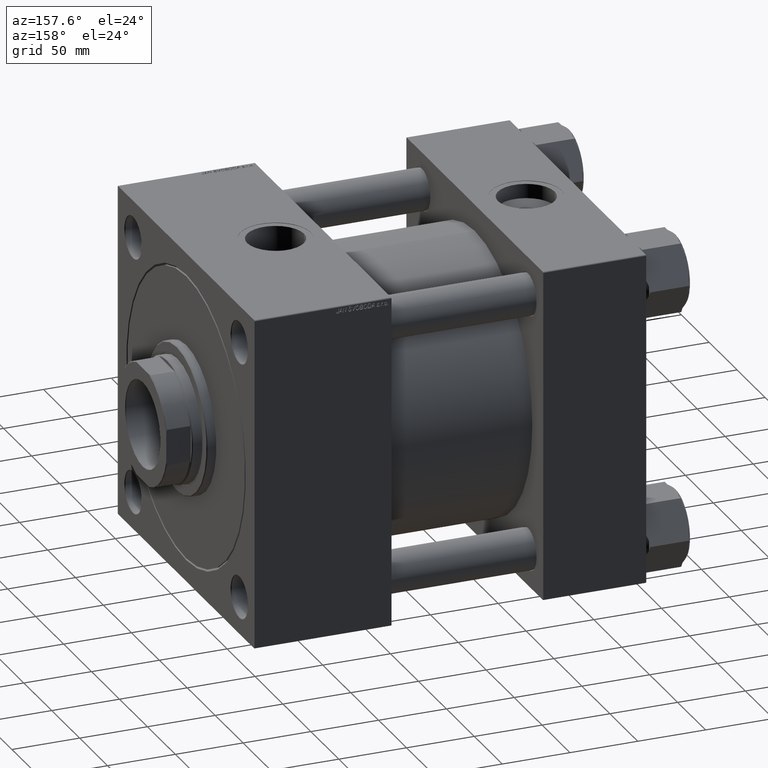
[diagram: clean part render]
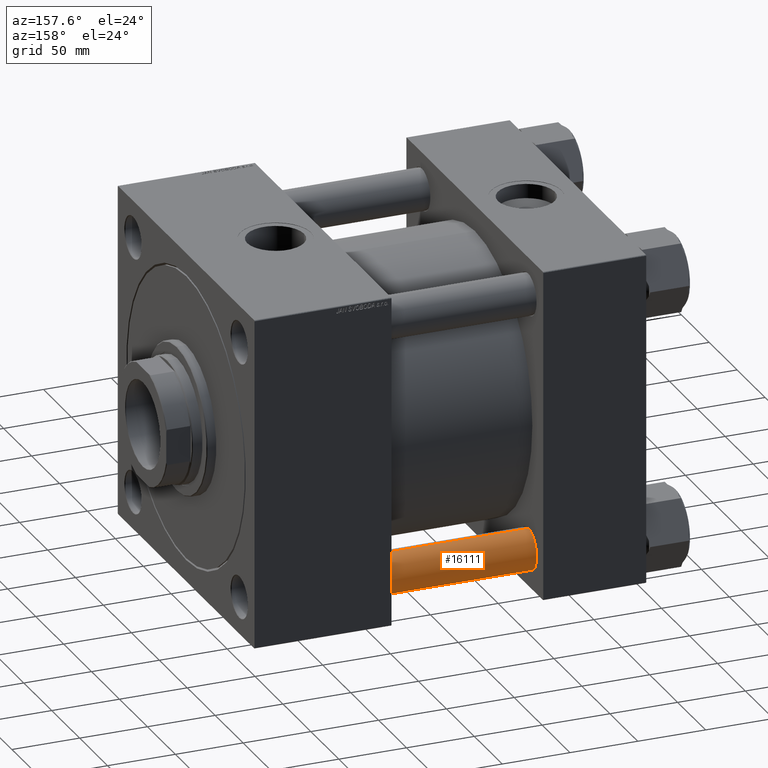
[diagram: same view with one face highlighted and labeled with its STEP entity id]
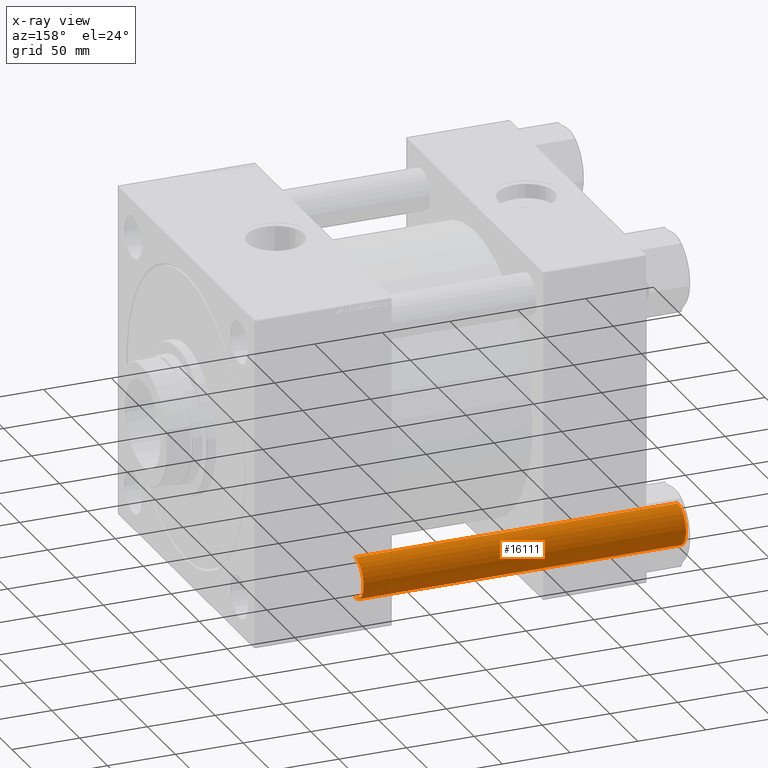
[diagram: x-ray of the same camera — body ghosted, the highlighted face saturated]
A machine part, auxiliary view. The second image highlights one B-rep face of the part: STEP entity #16111.
The next image is the same camera in x-ray: the body ghosted, the highlighted face saturated — about 0% of this face is hidden behind the body in this view.
In plain terms, the highlighted cylindrical surface (edge-blend (fillet) strip) has radius 15 mm, axis along (1, -0, -0).
Its self-contained STEP definition (entity closure, byte-faithful):
#501 = CIRCLE ( 'NONE', #5383, 15.00000000000000000 ) ;
#1920 = DIRECTION ( 'NONE',  ( -0.000000000000000000, -0.000000000000000000, 1.000000000000000000 ) ) ;
#3799 = CYLINDRICAL_SURFACE ( 'NONE', #27580, 15.00000000000000000 ) ;
#3948 = CARTESIAN_POINT ( 'NONE',  ( 15.00000000000000000, 1.836970198721029194E-15, 239.0000000000000000 ) ) ;
#5383 = AXIS2_PLACEMENT_3D ( 'NONE', #24738, #1920, #48585 ) ;
#5648 = VERTEX_POINT ( 'NONE', #39179 ) ;
#9643 = DIRECTION ( 'NONE',  ( -0.000000000000000000, -0.000000000000000000, -1.000000000000000000 ) ) ;
#14874 = EDGE_LOOP ( 'NONE', ( #38614, #35852, #48104, #27620 ) ) ;
#15555 = CARTESIAN_POINT ( 'NONE',  ( 0.000000000000000000, 0.000000000000000000, 238.5000000000000568 ) ) ;
#16111 = ADVANCED_FACE ( 'NONE', ( #50474 ), #3799, .T. ) ;
#18466 = EDGE_CURVE ( 'NONE', #23480, #21560, #38795, .T. ) ;
#18988 = CIRCLE ( 'NONE', #47671, 15.00000000000000000 ) ;
#20936 = LINE ( 'NONE', #47871, #43943 ) ;
#21560 = VERTEX_POINT ( 'NONE', #46794 ) ;
#23270 = CARTESIAN_POINT ( 'NONE',  ( 0.000000000000000000, 0.000000000000000000, 239.0000000000000000 ) ) ;
#23480 = VERTEX_POINT ( 'NONE', #31969 ) ;
#24738 = CARTESIAN_POINT ( 'NONE',  ( 0.000000000000000000, 0.000000000000000000, 0.5000000000002502443 ) ) ;
#26397 = VERTEX_POINT ( 'NONE', #43877 ) ;
#27580 = AXIS2_PLACEMENT_3D ( 'NONE', #23270, #43263, #46618 ) ;
#27620 = ORIENTED_EDGE ( 'NONE', *, *, #41889, .F. ) ;
#29847 = EDGE_CURVE ( 'NONE', #26397, #23480, #18988, .T. ) ;
#31969 = CARTESIAN_POINT ( 'NONE',  ( 15.00000000000000000, 1.836970198721029194E-15, 238.5000000000000568 ) ) ;
#35852 = ORIENTED_EDGE ( 'NONE', *, *, #18466, .T. ) ;
#38605 = DIRECTION ( 'NONE',  ( 0.000000000000000000, 0.000000000000000000, -1.000000000000000000 ) ) ;
#38614 = ORIENTED_EDGE ( 'NONE', *, *, #29847, .T. ) ;
#38795 = LINE ( 'NONE', #3948, #43197 ) ;
#39112 = DIRECTION ( 'NONE',  ( 1.000000000000000000, 0.000000000000000000, 0.000000000000000000 ) ) ;
#39179 = CARTESIAN_POINT ( 'NONE',  ( -15.00000000000000000, 0.000000000000000000, 0.5000000000002502443 ) ) ;
#39690 = EDGE_CURVE ( 'NONE', #21560, #5648, #501, .T. ) ;
#41889 = EDGE_CURVE ( 'NONE', #26397, #5648, #20936, .T. ) ;
#43197 = VECTOR ( 'NONE', #50365, 1000.000000000000000 ) ;
#43263 = DIRECTION ( 'NONE',  ( -0.000000000000000000, -0.000000000000000000, -1.000000000000000000 ) ) ;
#43877 = CARTESIAN_POINT ( 'NONE',  ( -15.00000000000000000, 0.000000000000000000, 238.5000000000000568 ) ) ;
#43943 = VECTOR ( 'NONE', #9643, 1000.000000000000000 ) ;
#46618 = DIRECTION ( 'NONE',  ( -1.000000000000000000, 0.000000000000000000, 0.000000000000000000 ) ) ;
#46794 = CARTESIAN_POINT ( 'NONE',  ( 15.00000000000000000, 1.836970198721029194E-15, 0.5000000000002502443 ) ) ;
#47671 = AXIS2_PLACEMENT_3D ( 'NONE', #15555, #38605, #39112 ) ;
#47871 = CARTESIAN_POINT ( 'NONE',  ( -15.00000000000000000, 0.000000000000000000, 239.0000000000000000 ) ) ;
#48104 = ORIENTED_EDGE ( 'NONE', *, *, #39690, .T. ) ;
#48585 = DIRECTION ( 'NONE',  ( 1.000000000000000000, 0.000000000000000000, 0.000000000000000000 ) ) ;
#50365 = DIRECTION ( 'NONE',  ( -0.000000000000000000, -0.000000000000000000, -1.000000000000000000 ) ) ;
#50474 = FACE_OUTER_BOUND ( 'NONE', #14874, .T. ) ;